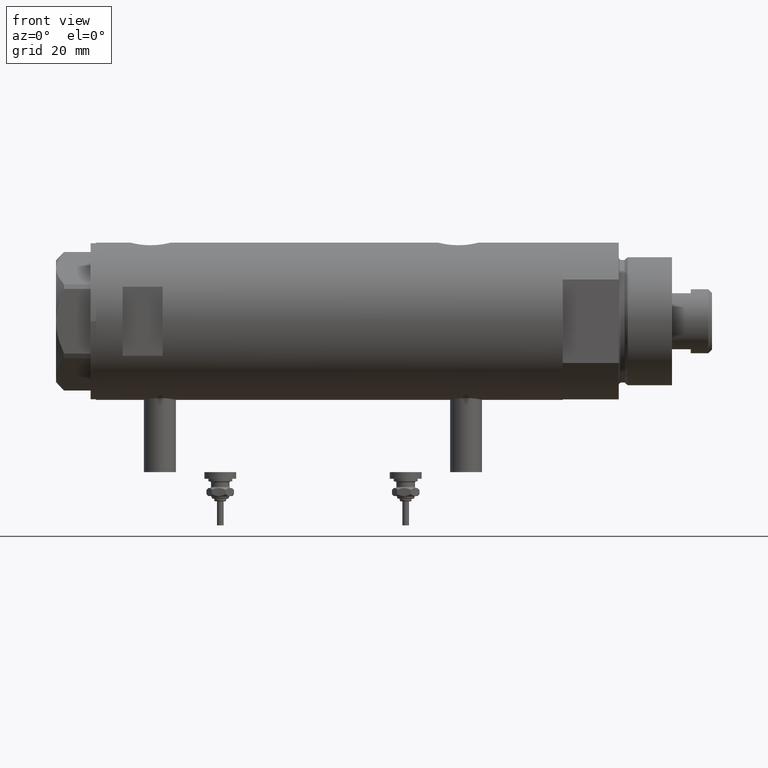
[diagram: clean part render]
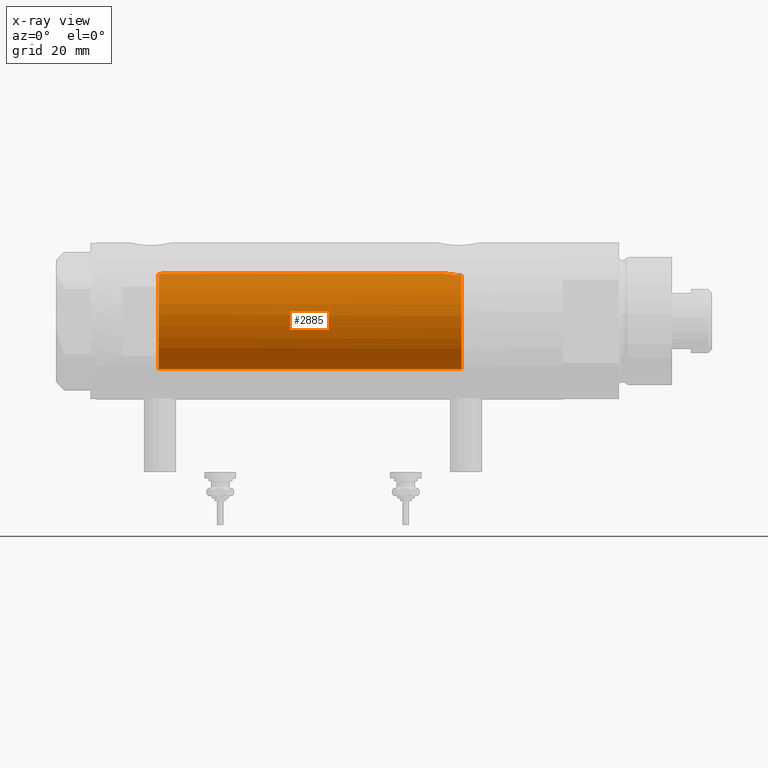
[diagram: x-ray — body ghosted, one internal face saturated and labeled with its STEP entity id]
A machine part, front view, then the same camera in x-ray: the body is ghosted and one INTERNAL B-rep face — a face not visible from any outside direction — is saturated and labeled: STEP entity #2885.
In plain terms, the highlighted cylindrical surface (partial cylindrical patch) has radius 18 mm, axis along (1, 0, -0).
Its self-contained STEP definition (entity closure, byte-faithful):
#15 = DIRECTION ( 'NONE',  ( 0.000000000000000000, 0.000000000000000000, -1.000000000000000000 ) ) ;
#81 = EDGE_LOOP ( 'NONE', ( #3758, #4561, #692, #690, #3391, #4715 ) ) ;
#143 = CARTESIAN_POINT ( 'NONE',  ( 18.00000000000000355, -0.3730735969061040325, 62.23499999999998522 ) ) ;
#251 = CARTESIAN_POINT ( 'NONE',  ( 17.78501549309440222, -2.778062367771706231, -44.40196575702887571 ) ) ;
#307 = CARTESIAN_POINT ( 'NONE',  ( 17.98578085412773220, -0.7388632979187831351, -43.58783263922211404 ) ) ;
#339 = CARTESIAN_POINT ( 'NONE',  ( 17.37991340314490785, -4.684530256828848493, -47.03638461192320364 ) ) ;
#514 = EDGE_CURVE ( 'NONE', #5149, #3117, #5838, .T. ) ;
#682 = AXIS2_PLACEMENT_3D ( 'NONE', #4492, #4980, #1362 ) ;
#690 = ORIENTED_EDGE ( 'NONE', *, *, #987, .T. ) ;
#692 = ORIENTED_EDGE ( 'NONE', *, *, #4559, .F. ) ;
#697 = CARTESIAN_POINT ( 'NONE',  ( 17.85233710017094566, -2.306965814323738595, -44.11276266371618249 ) ) ;
#706 = AXIS2_PLACEMENT_3D ( 'NONE', #2987, #4815, #3403 ) ;
#758 = CARTESIAN_POINT ( 'NONE',  ( 17.83055549281852237, -2.468946622824478077, -44.20402443991358865 ) ) ;
#906 = LINE ( 'NONE', #2721, #4213 ) ;
#987 = EDGE_CURVE ( 'NONE', #5530, #2324, #5841, .T. ) ;
#1214 = CARTESIAN_POINT ( 'NONE',  ( -18.00000000000000000, 0.000000000000000000, 64.09999999999999432 ) ) ;
#1362 = DIRECTION ( 'NONE',  ( 1.000000000000000000, 0.000000000000000000, 0.000000000000000000 ) ) ;
#1459 = DIRECTION ( 'NONE',  ( -1.000000000000000000, 0.000000000000000000, 0.000000000000000000 ) ) ;
#1512 = B_SPLINE_CURVE_WITH_KNOTS ( 'NONE', 3,
 ( #5533, #143, #2348, #1965, #3780, #5111, #5080, #2824, #3388, #1672 ),
 .UNSPECIFIED., .F., .F.,
 ( 4, 2, 2, 2, 4 ),
 ( 0.000000000000000000, 0.001102956581910070682, 0.002205913163820141798, 0.003308869745730213564, 0.004411826327640285331 ),
 .UNSPECIFIED. ) ;
#1569 = EDGE_CURVE ( 'NONE', #2268, #1587, #906, .T. ) ;
#1587 = VERTEX_POINT ( 'NONE', #2176 ) ;
#1624 = DIRECTION ( 'NONE',  ( -0.000000000000000000, -0.000000000000000000, -1.000000000000000000 ) ) ;
#1672 = CARTESIAN_POINT ( 'NONE',  ( 17.58783030962034033, -3.829911878881809173, 64.09999999999999432 ) ) ;
#1965 = CARTESIAN_POINT ( 'NONE',  ( 17.94467453319816030, -1.455166008437397629, 62.44318072553842569 ) ) ;
#2055 = CARTESIAN_POINT ( 'NONE',  ( -18.00000000000000000, 0.000000000000000000, 87.59999999999998010 ) ) ;
#2115 = CARTESIAN_POINT ( 'NONE',  ( 17.99716838826709520, -0.3690012331666944201, -43.54544422515623836 ) ) ;
#2144 = EDGE_CURVE ( 'NONE', #2268, #3117, #1512, .T. ) ;
#2176 = CARTESIAN_POINT ( 'NONE',  ( 18.00000000000000000, 5.958021437579254357E-16, -43.53499999999999659 ) ) ;
#2268 = VERTEX_POINT ( 'NONE', #5018 ) ;
#2279 = CARTESIAN_POINT ( 'NONE',  ( 0.000000000000000000, 0.000000000000000000, -49.60000000000000853 ) ) ;
#2324 = VERTEX_POINT ( 'NONE', #2394 ) ;
#2348 = CARTESIAN_POINT ( 'NONE',  ( 17.98842269988416831, -0.7385803848020507933, 62.27734794098787319 ) ) ;
#2394 = CARTESIAN_POINT ( 'NONE',  ( -18.00000000000000000, 0.000000000000000000, -49.60000000000000853 ) ) ;
#2540 = CARTESIAN_POINT ( 'NONE',  ( 17.63516507807922906, -3.613050995810182631, -45.12150009659158201 ) ) ;
#2721 = CARTESIAN_POINT ( 'NONE',  ( 18.00000000000000000, 2.204364238465235428E-15, 87.59999999999998010 ) ) ;
#2743 = B_SPLINE_CURVE_WITH_KNOTS ( 'NONE', 3,
 ( #5833, #2960, #4916, #2992, #5309, #339, #4784, #5337, #4340, #2540, #3028, #4852, #251, #758, #697, #3882, #4395, #3519, #307, #2115, #3942, #5779 ),
 .UNSPECIFIED., .F., .F.,
 ( 4, 2, 2, 2, 2, 2, 2, 2, 2, 2, 4 ),
 ( 0.006434066725458738659, 0.007540005695425722881, 0.008645944665392707104, 0.009751883635359691327, 0.01085782260532667555, 0.01196376157529365977, 0.01251673106027715102, 0.01306970054526064226, 0.01417563951522762475, 0.01472860900021111773, 0.01528157848519461244 ),
 .UNSPECIFIED. ) ;
#2751 = DIRECTION ( 'NONE',  ( -0.000000000000000000, -0.000000000000000000, -1.000000000000000000 ) ) ;
#2824 = CARTESIAN_POINT ( 'NONE',  ( 17.68806959355791619, -3.349106256179494423, 63.55213344176306833 ) ) ;
#2885 = ADVANCED_FACE ( 'NONE', ( #3938 ), #3023, .F. ) ;
#2960 = CARTESIAN_POINT ( 'NONE',  ( 17.34665145232710515, -4.806531086046565981, -49.23913341666350618 ) ) ;
#2970 = AXIS2_PLACEMENT_3D ( 'NONE', #2279, #15, #1459 ) ;
#2987 = CARTESIAN_POINT ( 'NONE',  ( 0.000000000000000000, 0.000000000000000000, 87.59999999999998010 ) ) ;
#2992 = CARTESIAN_POINT ( 'NONE',  ( 17.32819690210315855, -4.871720223791778714, -48.13420793424216981 ) ) ;
#3023 = CYLINDRICAL_SURFACE ( 'NONE', #706, 18.00000000000000000 ) ;
#3028 = CARTESIAN_POINT ( 'NONE',  ( 17.68752450041759516, -3.351772203450730458, -44.85493447381011833 ) ) ;
#3117 = VERTEX_POINT ( 'NONE', #3617 ) ;
#3284 = VECTOR ( 'NONE', #1624, 1000.000000000000000 ) ;
#3301 = EDGE_CURVE ( 'NONE', #5149, #2324, #4333, .T. ) ;
#3388 = CARTESIAN_POINT ( 'NONE',  ( 17.63693340989345515, -3.604419224588179649, 63.81212766824007332 ) ) ;
#3391 = ORIENTED_EDGE ( 'NONE', *, *, #3301, .F. ) ;
#3403 = DIRECTION ( 'NONE',  ( -1.000000000000000000, 0.000000000000000000, 0.000000000000000000 ) ) ;
#3519 = CARTESIAN_POINT ( 'NONE',  ( 17.97721305204034792, -0.9231636963562631637, -43.61982822371822266 ) ) ;
#3617 = CARTESIAN_POINT ( 'NONE',  ( 17.58783030962034033, -3.829911878881809173, 64.09999999999999432 ) ) ;
#3758 = ORIENTED_EDGE ( 'NONE', *, *, #2144, .F. ) ;
#3780 = CARTESIAN_POINT ( 'NONE',  ( 17.91197612045793619, -1.808534151376000265, 62.56883769349537516 ) ) ;
#3882 = CARTESIAN_POINT ( 'NONE',  ( 17.91207243579358632, -1.808254927071297313, -43.86838658940776980 ) ) ;
#3938 = FACE_OUTER_BOUND ( 'NONE', #81, .T. ) ;
#3942 = CARTESIAN_POINT ( 'NONE',  ( 17.99999999999999645, -0.1843597763241263676, -43.53499999999998948 ) ) ;
#4213 = VECTOR ( 'NONE', #2751, 1000.000000000000000 ) ;
#4333 = LINE ( 'NONE', #2055, #3284 ) ;
#4340 = CARTESIAN_POINT ( 'NONE',  ( 17.53680980608543649, -4.063678955652867408, -45.70014584461345919 ) ) ;
#4395 = CARTESIAN_POINT ( 'NONE',  ( 17.94411621822183633, -1.462318180775788568, -43.74532018047459303 ) ) ;
#4492 = CARTESIAN_POINT ( 'NONE',  ( 0.000000000000000000, 0.000000000000000000, 64.09999999999999432 ) ) ;
#4559 = EDGE_CURVE ( 'NONE', #5530, #1587, #2743, .T. ) ;
#4561 = ORIENTED_EDGE ( 'NONE', *, *, #1569, .T. ) ;
#4715 = ORIENTED_EDGE ( 'NONE', *, *, #514, .T. ) ;
#4743 = CARTESIAN_POINT ( 'NONE',  ( 17.37157951943345680, -4.714681855650495912, -49.60000000000000142 ) ) ;
#4784 = CARTESIAN_POINT ( 'NONE',  ( 17.41145422212636618, -4.568075757751900667, -46.68573299053986148 ) ) ;
#4815 = DIRECTION ( 'NONE',  ( -0.000000000000000000, -0.000000000000000000, -1.000000000000000000 ) ) ;
#4852 = CARTESIAN_POINT ( 'NONE',  ( 17.76113839466168187, -2.926207082530021264, -44.50911996042638208 ) ) ;
#4916 = CARTESIAN_POINT ( 'NONE',  ( 17.33258131920085177, -4.856098292894137636, -48.87181853595665615 ) ) ;
#4980 = DIRECTION ( 'NONE',  ( 0.000000000000000000, 0.000000000000000000, 1.000000000000000000 ) ) ;
#5018 = CARTESIAN_POINT ( 'NONE',  ( 18.00000000000000000, 0.000000000000000000, 62.23499999999999233 ) ) ;
#5080 = CARTESIAN_POINT ( 'NONE',  ( 17.78689333688353358, -2.776822659814067507, 63.08837617090291872 ) ) ;
#5111 = CARTESIAN_POINT ( 'NONE',  ( 17.83332390923721533, -2.466220319593701138, 62.89048875048365517 ) ) ;
#5149 = VERTEX_POINT ( 'NONE', #1214 ) ;
#5309 = CARTESIAN_POINT ( 'NONE',  ( 17.33821808943283216, -4.836569767017236288, -47.75823404381377202 ) ) ;
#5337 = CARTESIAN_POINT ( 'NONE',  ( 17.49057517990651078, -4.255095079290335924, -46.01249222525177629 ) ) ;
#5530 = VERTEX_POINT ( 'NONE', #4743 ) ;
#5533 = CARTESIAN_POINT ( 'NONE',  ( 18.00000000000000000, 0.000000000000000000, 62.23499999999999233 ) ) ;
#5779 = CARTESIAN_POINT ( 'NONE',  ( 18.00000000000000000, 5.958021437579254357E-16, -43.53499999999999659 ) ) ;
#5833 = CARTESIAN_POINT ( 'NONE',  ( 17.37157951943345680, -4.714681855650495912, -49.60000000000000142 ) ) ;
#5838 = CIRCLE ( 'NONE', #682, 18.00000000000000000 ) ;
#5841 = CIRCLE ( 'NONE', #2970, 18.00000000000000000 ) ;